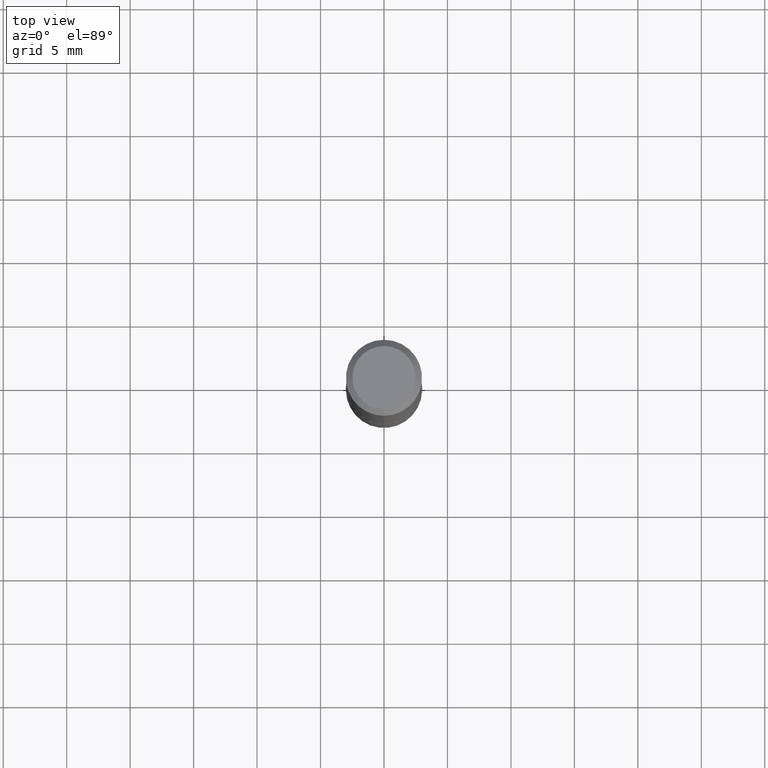
[diagram: clean part render]
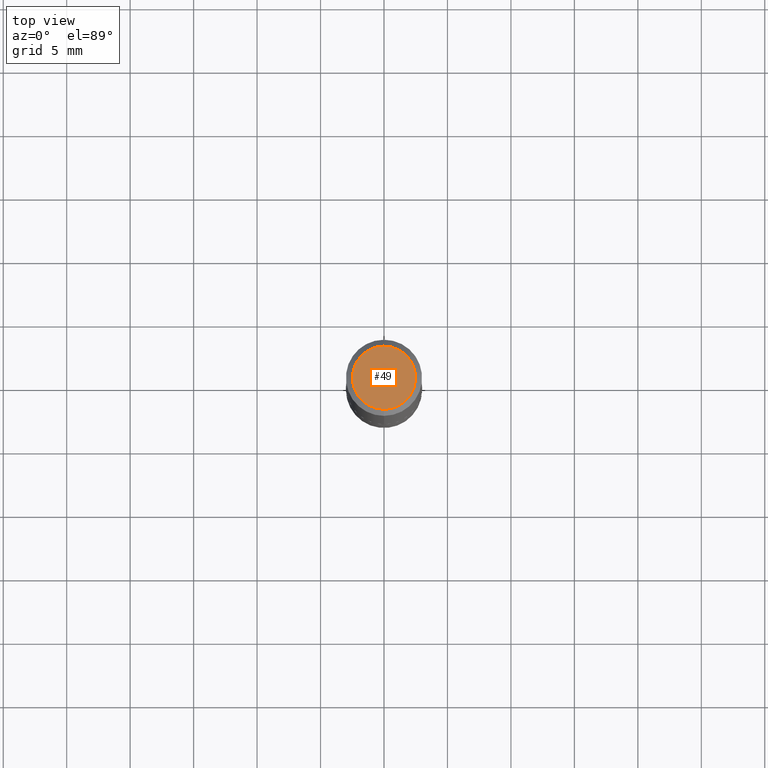
[diagram: same view with one face highlighted and labeled with its STEP entity id]
A machine part, top view. The second image highlights one B-rep face of the part: STEP entity #49.
In plain terms, the highlighted planar face has unit normal (0, -0, -1).
Its self-contained STEP definition (entity closure, byte-faithful):
#18 = EDGE_LOOP ( 'NONE', ( #48, #316 ) ) ;
#48 = ORIENTED_EDGE ( 'NONE', *, *, #378, .T. ) ;
#49 = ADVANCED_FACE ( 'NONE', ( #281 ), #285, .F. ) ;
#63 = CARTESIAN_POINT ( 'NONE',  ( 8.172785934604017576E-45, -1.162525753552274938E-30, -3.335818387311265061E-16 ) ) ;
#76 = DIRECTION ( 'NONE',  ( 2.450009258804836067E-29, -3.484979152265221421E-15, -1.000000000000000000 ) ) ;
#98 = DIRECTION ( 'NONE',  ( -2.450009258804836628E-29, 3.484979152265221027E-15, 1.000000000000000000 ) ) ;
#105 = DIRECTION ( 'NONE',  ( 6.982962677686265922E-15, 1.000000000000000000, -3.484979152265221421E-15 ) ) ;
#116 = DIRECTION ( 'NONE',  ( -2.450009258804836628E-29, 3.484979152265221027E-15, 1.000000000000000000 ) ) ;
#131 = CARTESIAN_POINT ( 'NONE',  ( 7.548582654578867393E-16, 0.09810000000000035358, -6.754582935683457910E-16 ) ) ;
#159 = AXIS2_PLACEMENT_3D ( 'NONE', #376, #76, #105 ) ;
#161 = AXIS2_PLACEMENT_3D ( 'NONE', #300, #98, #335 ) ;
#194 = CIRCLE ( 'NONE', #388, 0.09810000000000035358 ) ;
#209 = EDGE_CURVE ( 'NONE', #313, #406, #194, .T. ) ;
#258 = DIRECTION ( 'NONE',  ( -6.982962677686265922E-15, -1.000000000000000000, 3.484979152265220632E-15 ) ) ;
#281 = FACE_OUTER_BOUND ( 'NONE', #18, .T. ) ;
#285 = PLANE ( 'NONE',  #159 ) ;
#300 = CARTESIAN_POINT ( 'NONE',  ( 8.172785934604017576E-45, -1.162525753552274938E-30, -3.335818387311265061E-16 ) ) ;
#313 = VERTEX_POINT ( 'NONE', #392 ) ;
#316 = ORIENTED_EDGE ( 'NONE', *, *, #209, .T. ) ;
#335 = DIRECTION ( 'NONE',  ( -6.982962677686265922E-15, -1.000000000000000000, 3.484979152265220632E-15 ) ) ;
#362 = CIRCLE ( 'NONE', #161, 0.09810000000000035358 ) ;
#376 = CARTESIAN_POINT ( 'NONE',  ( 6.850286386810251175E-16, 0.09810000000000035358, -5.086673742027826119E-16 ) ) ;
#378 = EDGE_CURVE ( 'NONE', #406, #313, #362, .T. ) ;
#388 = AXIS2_PLACEMENT_3D ( 'NONE', #63, #116, #258 ) ;
#392 = CARTESIAN_POINT ( 'NONE',  ( -7.416198335591033911E-16, -0.09810000000000035358, 8.294616106092906705E-18 ) ) ;
#406 = VERTEX_POINT ( 'NONE', #131 ) ;